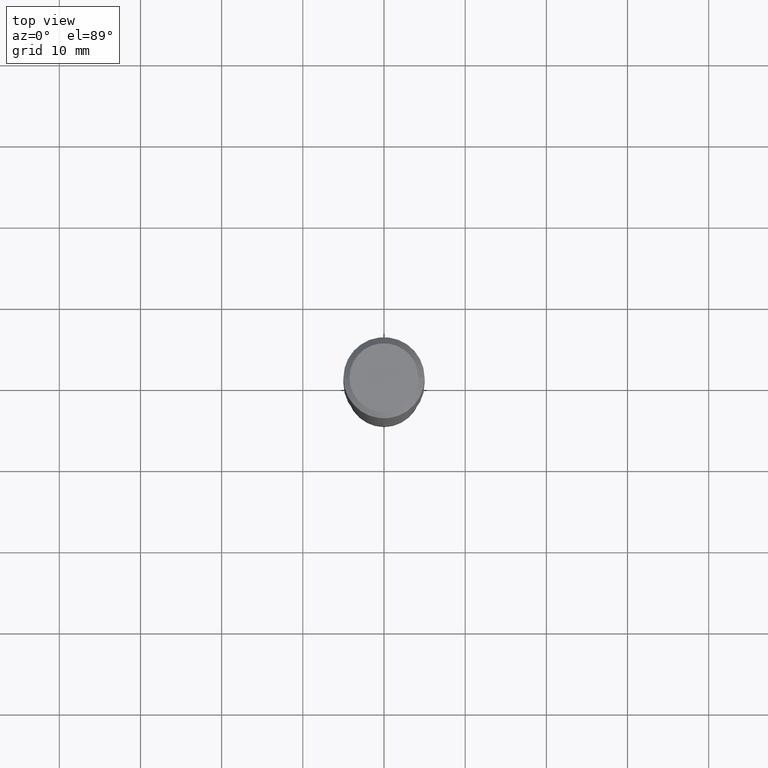
[diagram: clean part render]
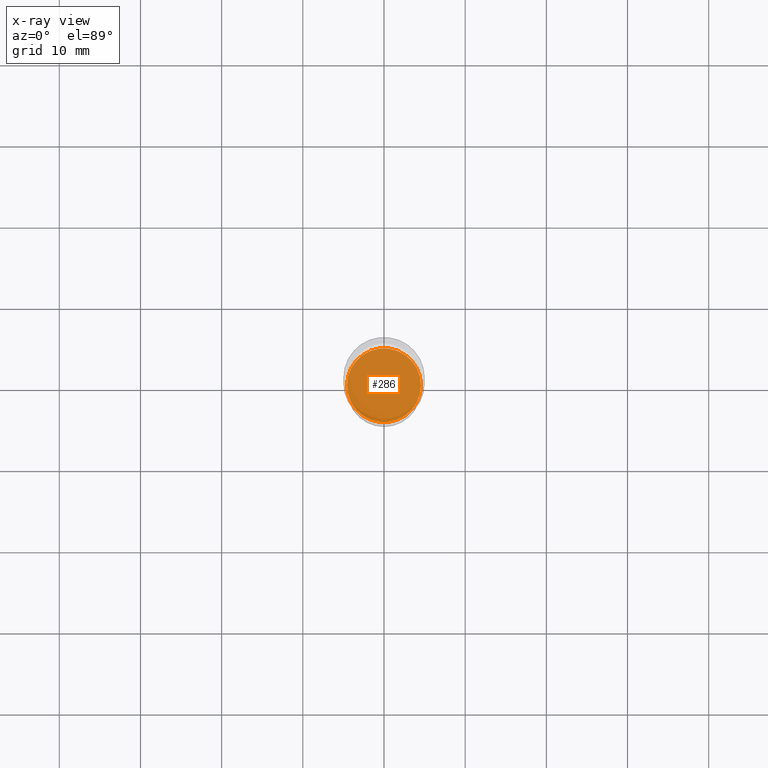
[diagram: x-ray — body ghosted, one internal face saturated and labeled with its STEP entity id]
A machine part, top view, then the same camera in x-ray: the body is ghosted and one INTERNAL B-rep face — a face not visible from any outside direction — is saturated and labeled: STEP entity #286.
In plain terms, the highlighted planar face has unit normal (-0, 0, 1).
Its self-contained STEP definition (entity closure, byte-faithful):
#36 = CARTESIAN_POINT ( 'NONE',  ( -0.1791999999999999982, -6.146598368590432200E-15, -2.125899999999999679 ) ) ;
#43 = DIRECTION ( 'NONE',  ( 1.000000000000000000, -6.982962677686265922E-15, 4.876176775795935793E-29 ) ) ;
#75 = DIRECTION ( 'NONE',  ( 1.000000000000000000, -6.982962677686264344E-15, 0.000000000000000000 ) ) ;
#76 = EDGE_LOOP ( 'NONE', ( #413, #308 ) ) ;
#77 = DIRECTION ( 'NONE',  ( 1.000000000000000000, -6.982962677686264344E-15, 0.000000000000000000 ) ) ;
#111 = AXIS2_PLACEMENT_3D ( 'NONE', #275, #424, #77 ) ;
#190 = AXIS2_PLACEMENT_3D ( 'NONE', #378, #300, #43 ) ;
#230 = CARTESIAN_POINT ( 'NONE',  ( 5.198822135068982087E-29, -7.422540178246643119E-15, -2.125899999999999679 ) ) ;
#233 = AXIS2_PLACEMENT_3D ( 'NONE', #230, #417, #75 ) ;
#237 = VERTEX_POINT ( 'NONE', #36 ) ;
#238 = EDGE_CURVE ( 'NONE', #249, #237, #316, .T. ) ;
#249 = VERTEX_POINT ( 'NONE', #307 ) ;
#275 = CARTESIAN_POINT ( 'NONE',  ( 5.198822135068982087E-29, -7.422540178246643119E-15, -2.125899999999999679 ) ) ;
#286 = ADVANCED_FACE ( 'NONE', ( #458 ), #332, .F. ) ;
#300 = DIRECTION ( 'NONE',  ( -2.438088387897960049E-29, 3.491481338843145188E-15, 1.000000000000000000 ) ) ;
#307 = CARTESIAN_POINT ( 'NONE',  ( 0.1791999999999999982, -8.673887090088021053E-15, -2.125899999999999679 ) ) ;
#308 = ORIENTED_EDGE ( 'NONE', *, *, #468, .F. ) ;
#316 = CIRCLE ( 'NONE', #111, 0.1791999999999999982 ) ;
#332 = PLANE ( 'NONE',  #190 ) ;
#378 = CARTESIAN_POINT ( 'NONE',  ( 5.198822135068982087E-29, -7.422540178246643119E-15, -2.125899999999999679 ) ) ;
#413 = ORIENTED_EDGE ( 'NONE', *, *, #238, .F. ) ;
#417 = DIRECTION ( 'NONE',  ( -2.445468806185136597E-29, 3.491481338843145583E-15, 1.000000000000000000 ) ) ;
#424 = DIRECTION ( 'NONE',  ( -2.445468806185136597E-29, 3.491481338843145583E-15, 1.000000000000000000 ) ) ;
#458 = FACE_OUTER_BOUND ( 'NONE', #76, .T. ) ;
#468 = EDGE_CURVE ( 'NONE', #237, #249, #484, .T. ) ;
#484 = CIRCLE ( 'NONE', #233, 0.1791999999999999982 ) ;